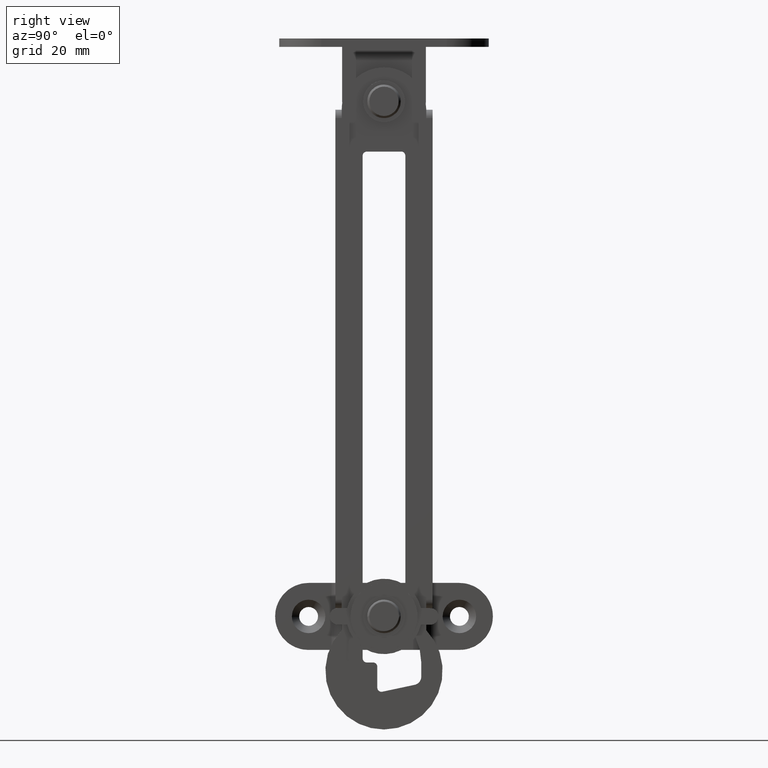
[diagram: clean part render]
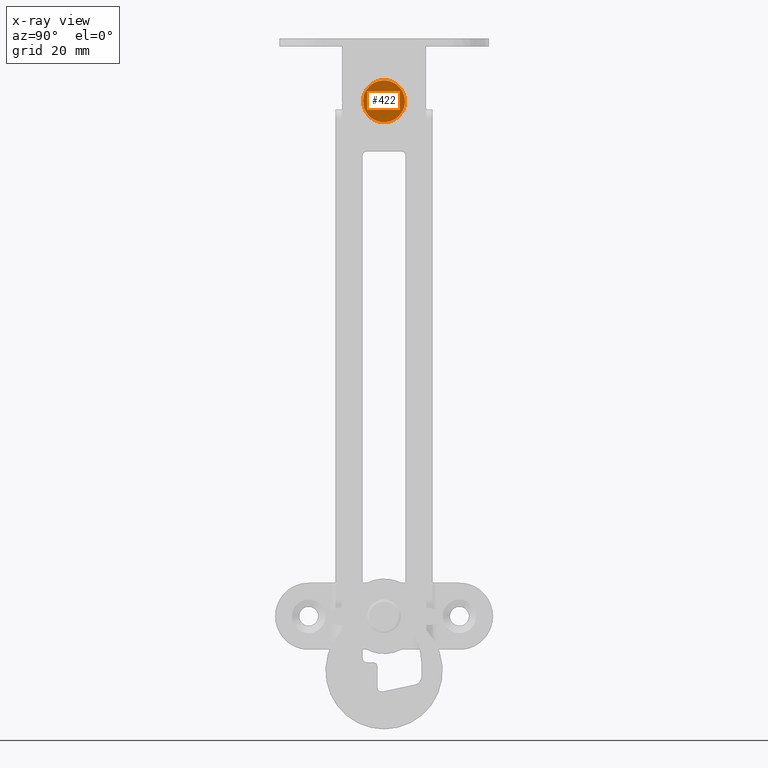
[diagram: x-ray — body ghosted, one internal face saturated and labeled with its STEP entity id]
A machine part, right view, then the same camera in x-ray: the body is ghosted and one INTERNAL B-rep face — a face not visible from any outside direction — is saturated and labeled: STEP entity #422.
In plain terms, the highlighted face is a freeform B-spline surface patch.
Its self-contained STEP definition (entity closure, byte-faithful):
#167=CARTESIAN_POINT('',(4.000000000000116,-3.441772055595758,3.626870987046107));
#168=VERTEX_POINT('',#167);
#174=CARTESIAN_POINT('',(4.000000000000116,-4.999999999997705,-0.000004790822646));
#175=VERTEX_POINT('',#174);
#176=CARTESIAN_POINT('',(4.000000000000116,-3.441772055595758,3.626870987046107));
#177=CARTESIAN_POINT('',(4.000000000000120,-3.963887470314436,3.132885013011162));
#178=CARTESIAN_POINT('',(4.000000000000109,-4.739008317248415,1.986212523185555));
#179=CARTESIAN_POINT('',(4.000000000000121,-5.000621928494853,0.634140369572271));
#180=CARTESIAN_POINT('',(4.000000000000116,-4.999999999997705,-0.000004790822646));
#181=B_SPLINE_CURVE_WITH_KNOTS('',3,(#176,#177,#178,#179,#180),.UNSPECIFIED.,.F.,.U.,(4,1,4),(0.000000102869678,2.155794007594374,4.058003543714988),.UNSPECIFIED.);
#182=EDGE_CURVE('',#168,#175,#181,.T.);
#184=CARTESIAN_POINT('',(4.000000000000116,0.0,-5.0));
#185=VERTEX_POINT('',#184);
#186=CARTESIAN_POINT('',(4.000000000000116,-4.999999999997705,-0.000004790822646));
#187=CARTESIAN_POINT('',(4.000000000000118,-5.000843974441363,-0.695502955907812));
#188=CARTESIAN_POINT('',(4.000000000000118,-4.731109451788964,-1.963024924849584));
#189=CARTESIAN_POINT('',(4.000000000000116,-3.808516869724662,-3.343564490733601));
#190=CARTESIAN_POINT('',(4.000000000000116,-2.863460828489343,-4.138220378349389));
#191=CARTESIAN_POINT('',(4.000000000000114,-1.676581770245327,-4.791793921652994));
#192=CARTESIAN_POINT('',(4.000000000000120,-0.695604203397772,-5.000941736115234));
#193=CARTESIAN_POINT('',(4.000000000000116,0.0,-5.0));
#194=B_SPLINE_CURVE_WITH_KNOTS('',3,(#186,#187,#188,#189,#190,#191,#192,#193),.UNSPECIFIED.,.F.,.U.,(4,1,1,1,1,4),(0.000000434423320,2.086269359815262,3.804424921045513,4.908803455946603,5.767907094453072,7.854176021442805),.UNSPECIFIED.);
#195=EDGE_CURVE('',#175,#185,#194,.T.);
#197=CARTESIAN_POINT('',(4.000000000000116,3.441772055595752,-3.626870987046102));
#198=VERTEX_POINT('',#197);
#199=CARTESIAN_POINT('',(4.000000000000116,0.0,-5.0));
#200=CARTESIAN_POINT('',(4.000000000000122,0.672346151487500,-5.000822484477529));
#201=CARTESIAN_POINT('',(4.000000000000103,1.936958060197384,-4.740571145621226));
#202=CARTESIAN_POINT('',(4.000000000000125,3.011795298697139,-4.035560502074513));
#203=CARTESIAN_POINT('',(4.000000000000116,3.441772055595752,-3.626870987046102));
#204=B_SPLINE_CURVE_WITH_KNOTS('',3,(#199,#200,#201,#202,#203),.UNSPECIFIED.,.F.,.U.,(4,1,4),(0.000000105612093,2.016693121899562,3.796179684496420),.UNSPECIFIED.);
#205=EDGE_CURVE('',#185,#198,#204,.T.);
#239=CARTESIAN_POINT('',(4.000000000000116,4.999999999997705,0.000004790822679));
#240=VERTEX_POINT('',#239);
#241=CARTESIAN_POINT('',(4.000000000000116,3.441772055595752,-3.626870987046102));
#242=CARTESIAN_POINT('',(4.000000000000113,3.963915643167411,-3.132901376693513));
#243=CARTESIAN_POINT('',(4.000000000000123,4.738996658075330,-1.986221463101417));
#244=CARTESIAN_POINT('',(4.000000000000112,5.000621117895068,-0.634133941182092));
#245=CARTESIAN_POINT('',(4.000000000000116,4.999999999997705,0.000004790822679));
#246=B_SPLINE_CURVE_WITH_KNOTS('',3,(#241,#242,#243,#244,#245),.UNSPECIFIED.,.F.,.U.,(4,1,4),(0.000000102869648,2.155794007594382,4.058003543715017),.UNSPECIFIED.);
#247=EDGE_CURVE('',#198,#240,#246,.T.);
#249=CARTESIAN_POINT('',(4.000000000000116,0.0,5.0));
#250=VERTEX_POINT('',#249);
#251=CARTESIAN_POINT('',(4.000000000000116,4.999999999997705,0.000004790822679));
#252=CARTESIAN_POINT('',(4.000000000000111,5.000123558914564,0.449973912212806));
#253=CARTESIAN_POINT('',(4.000000000000130,4.866690421355637,1.431725286937451));
#254=CARTESIAN_POINT('',(4.000000000000108,4.211435842759815,2.863155241336090));
#255=CARTESIAN_POINT('',(4.000000000000124,3.066303962448297,4.065861646861852));
#256=CARTESIAN_POINT('',(4.000000000000116,1.595219080088564,4.828793970317443));
#257=CARTESIAN_POINT('',(4.000000000000108,0.531792765211671,5.000243319834946));
#258=CARTESIAN_POINT('',(4.000000000000116,0.0,5.0));
#259=B_SPLINE_CURVE_WITH_KNOTS('',3,(#251,#252,#253,#254,#255,#256,#257,#258),.UNSPECIFIED.,.F.,.U.,(4,1,1,1,1,4),(0.000000434423854,1.349934012183782,2.945372998899559,4.663399888116253,6.258818241263681,7.854176021442774),.UNSPECIFIED.);
#260=EDGE_CURVE('',#240,#250,#259,.T.);
#262=CARTESIAN_POINT('',(4.000000000000116,0.0,5.0));
#263=CARTESIAN_POINT('',(4.000000000000120,-0.514105286591689,5.000278969458750));
#264=CARTESIAN_POINT('',(4.000000000000115,-1.344307367234214,4.870725810786697));
#265=CARTESIAN_POINT('',(4.000000000000117,-2.513402686348207,4.371832351290392));
#266=CARTESIAN_POINT('',(4.000000000000120,-3.126331522324237,3.926376668786920));
#267=CARTESIAN_POINT('',(4.000000000000116,-3.441772055595758,3.626870987046107));
#268=B_SPLINE_CURVE_WITH_KNOTS('',3,(#262,#263,#264,#265,#266,#267),.UNSPECIFIED.,.F.,.U.,(4,1,1,4),(0.000000105612009,1.542229082398966,2.491238586826441,3.796179684496422),.UNSPECIFIED.);
#269=EDGE_CURVE('',#250,#168,#268,.T.);
#296=CARTESIAN_POINT('',(4.000000000000116,1.450748385102865,1.376709507543474));
#297=VERTEX_POINT('',#296);
#303=CARTESIAN_POINT('',(4.000000000000116,1.999999999999999,-0.000000055035999));
#304=VERTEX_POINT('',#303);
#305=CARTESIAN_POINT('',(4.000000000000116,1.999999999999999,-0.000000055035999));
#306=CARTESIAN_POINT('',(4.000000000000120,2.000135258455261,0.221458363330824));
#307=CARTESIAN_POINT('',(4.000000000000110,1.915053940182927,0.727507531581052));
#308=CARTESIAN_POINT('',(4.000000000000119,1.647082761980365,1.170420628717672));
#309=CARTESIAN_POINT('',(4.000000000000116,1.450748385102865,1.376709507543474));
#310=B_SPLINE_CURVE_WITH_KNOTS('',3,(#305,#306,#307,#308,#309),.UNSPECIFIED.,.F.,.U.,(4,1,4),(0.000000143900577,0.664379164212643,1.518579322289983),.UNSPECIFIED.);
#311=EDGE_CURVE('',#304,#297,#310,.T.);
#313=CARTESIAN_POINT('',(4.000000000000116,0.0,-2.0));
#314=VERTEX_POINT('',#313);
#315=CARTESIAN_POINT('',(4.000000000000116,0.0,-2.0));
#316=CARTESIAN_POINT('',(4.000000000000117,0.196347230573344,-2.000069182152777));
#317=CARTESIAN_POINT('',(4.000000000000116,0.589033191163331,-1.941733796522223));
#318=CARTESIAN_POINT('',(4.000000000000103,1.082423723771664,-1.708374461816922));
#319=CARTESIAN_POINT('',(4.000000000000124,1.498110884791713,-1.358576413368132));
#320=CARTESIAN_POINT('',(4.000000000000116,1.879250101809049,-0.817733123026246));
#321=CARTESIAN_POINT('',(4.000000000000117,2.000553201241023,-0.310996550773877));
#322=CARTESIAN_POINT('',(4.000000000000116,1.999999999999999,-0.000000055035999));
#323=B_SPLINE_CURVE_WITH_KNOTS('',3,(#315,#316,#317,#318,#319,#320,#321,#322),.UNSPECIFIED.,.F.,.U.,(4,1,1,1,1,4),(0.000000633118132,0.589043774118171,1.178173068856931,1.619829677477497,2.208981133662357,3.141671457811024),.UNSPECIFIED.);
#324=EDGE_CURVE('',#314,#304,#323,.T.);
#326=CARTESIAN_POINT('',(4.000000000000116,-1.450748385102866,-1.376709507543475));
#327=VERTEX_POINT('',#326);
#328=CARTESIAN_POINT('',(4.000000000000116,-1.450748385102866,-1.376709507543475));
#329=CARTESIAN_POINT('',(4.000000000000117,-1.253161006770429,-1.585532032288739));
#330=CARTESIAN_POINT('',(4.000000000000114,-0.794505251117879,-1.895640468762202));
#331=CARTESIAN_POINT('',(4.000000000000119,-0.253665344940737,-2.000221435753367));
#332=CARTESIAN_POINT('',(4.000000000000116,0.0,-2.0));
#333=B_SPLINE_CURVE_WITH_KNOTS('',3,(#328,#329,#330,#331,#332),.UNSPECIFIED.,.F.,.U.,(4,1,4),(0.000000165961622,0.862280065357263,1.623199185762984),.UNSPECIFIED.);
#334=EDGE_CURVE('',#327,#314,#333,.T.);
#364=CARTESIAN_POINT('',(4.000000000000116,-1.999999999999999,0.000000055035993));
#365=VERTEX_POINT('',#364);
#366=CARTESIAN_POINT('',(4.000000000000116,-1.999999999999999,0.000000055035993));
#367=CARTESIAN_POINT('',(4.000000000000120,-2.000151899184821,-0.221446494516610));
#368=CARTESIAN_POINT('',(4.000000000000106,-1.915028657263055,-0.727519670659077));
#369=CARTESIAN_POINT('',(4.000000000000124,-1.647095242986330,-1.170415389688390));
#370=CARTESIAN_POINT('',(4.000000000000116,-1.450748385102866,-1.376709507543475));
#371=B_SPLINE_CURVE_WITH_KNOTS('',3,(#366,#367,#368,#369,#370),.UNSPECIFIED.,.F.,.U.,(4,1,4),(0.000000143900600,0.664379164212650,1.518579322289978),.UNSPECIFIED.);
#372=EDGE_CURVE('',#365,#327,#371,.T.);
#374=CARTESIAN_POINT('',(4.000000000000116,0.0,2.0));
#375=VERTEX_POINT('',#374);
#376=CARTESIAN_POINT('',(4.000000000000116,0.0,2.0));
#377=CARTESIAN_POINT('',(4.000000000000120,-0.196326353023147,2.000024984344993));
#378=CARTESIAN_POINT('',(4.000000000000116,-0.654573677322214,1.932213565505811));
#379=CARTESIAN_POINT('',(4.000000000000108,-1.242928881269843,1.617732974184807));
#380=CARTESIAN_POINT('',(4.000000000000117,-1.653791126415235,1.164056249829248));
#381=CARTESIAN_POINT('',(4.000000000000118,-1.926737182104392,0.638000119065387));
#382=CARTESIAN_POINT('',(4.000000000000110,-2.000226800956682,0.245477917518153));
#383=CARTESIAN_POINT('',(4.000000000000116,-1.999999999999999,0.000000055035993));
#384=B_SPLINE_CURVE_WITH_KNOTS('',3,(#376,#377,#378,#379,#380,#381,#382,#383),.UNSPECIFIED.,.F.,.U.,(4,1,1,1,1,4),(0.000000633118024,0.589043774118085,1.374526089243585,1.963502022072236,2.405343520437921,3.141671457811028),.UNSPECIFIED.);
#385=EDGE_CURVE('',#375,#365,#384,.T.);
#387=CARTESIAN_POINT('',(4.000000000000116,1.450748385102865,1.376709507543474));
#388=CARTESIAN_POINT('',(4.000000000000122,1.311137323241838,1.523937919124549));
#389=CARTESIAN_POINT('',(4.000000000000104,0.878458475551745,1.859250369179065));
#390=CARTESIAN_POINT('',(4.000000000000119,0.338368264432888,2.000876122262493));
#391=CARTESIAN_POINT('',(4.000000000000116,0.0,2.0));
#392=B_SPLINE_CURVE_WITH_KNOTS('',3,(#387,#388,#389,#390,#391),.UNSPECIFIED.,.F.,.U.,(4,1,4),(0.000000165961640,0.608718137929139,1.623199185762982),.UNSPECIFIED.);
#393=EDGE_CURVE('',#297,#375,#392,.T.);
#401=CARTESIAN_POINT('',(4.000000000000085,-5.499499980615536,5.499499980618060));
#402=CARTESIAN_POINT('',(4.000000000000085,5.499500248836438,5.499499980618060));
#403=CARTESIAN_POINT('',(4.000000000000085,-5.499499980615536,-5.499500248838961));
#404=CARTESIAN_POINT('',(4.000000000000085,5.499500248836438,-5.499500248838961));
#405=B_SPLINE_SURFACE_WITH_KNOTS('',1,1,((#401,#403),(#402,#404)),.UNSPECIFIED.,.F.,.F.,.U.,(2,2),(2,2),(0.0,10.999000229451971),(0.0,10.999000229457019),.UNSPECIFIED.);
#406=ORIENTED_EDGE('',*,*,#260,.F.);
#407=ORIENTED_EDGE('',*,*,#247,.F.);
#408=ORIENTED_EDGE('',*,*,#205,.F.);
#409=ORIENTED_EDGE('',*,*,#195,.F.);
#410=ORIENTED_EDGE('',*,*,#182,.F.);
#411=ORIENTED_EDGE('',*,*,#269,.F.);
#412=EDGE_LOOP('',(#406,#407,#408,#409,#410,#411));
#413=FACE_OUTER_BOUND('',#412,.T.);
#414=ORIENTED_EDGE('',*,*,#385,.T.);
#415=ORIENTED_EDGE('',*,*,#372,.T.);
#416=ORIENTED_EDGE('',*,*,#334,.T.);
#417=ORIENTED_EDGE('',*,*,#324,.T.);
#418=ORIENTED_EDGE('',*,*,#311,.T.);
#419=ORIENTED_EDGE('',*,*,#393,.T.);
#420=EDGE_LOOP('',(#414,#415,#416,#417,#418,#419));
#421=FACE_BOUND('',#420,.T.);
#422=ADVANCED_FACE('',(#413,#421),#405,.T.);